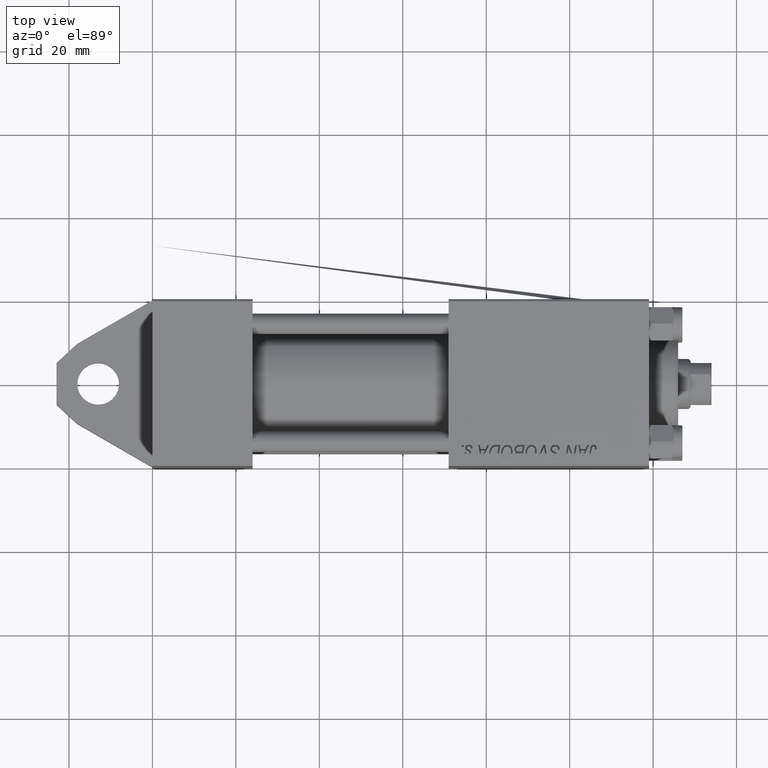
[diagram: clean part render]
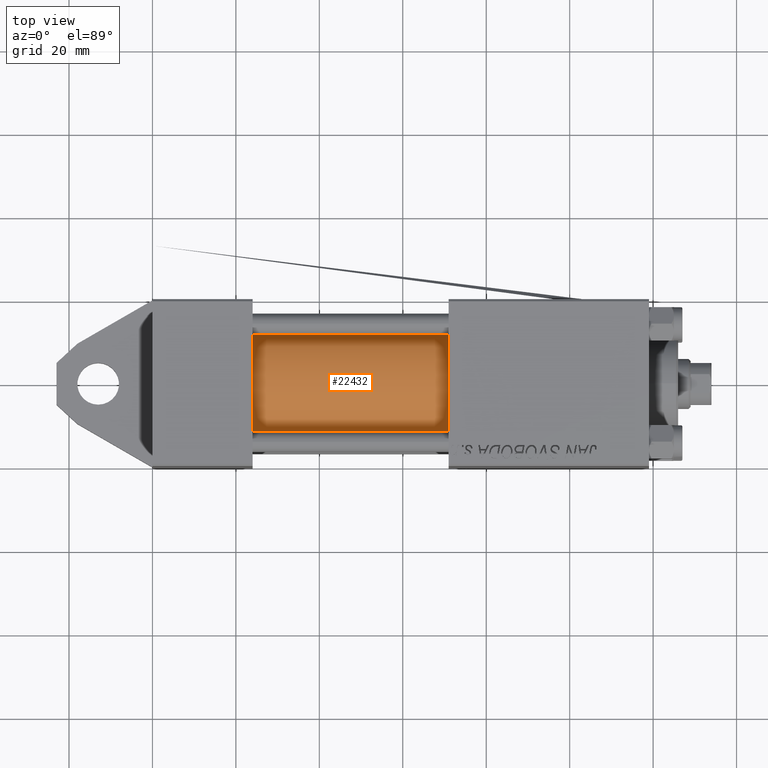
[diagram: same view with one face highlighted and labeled with its STEP entity id]
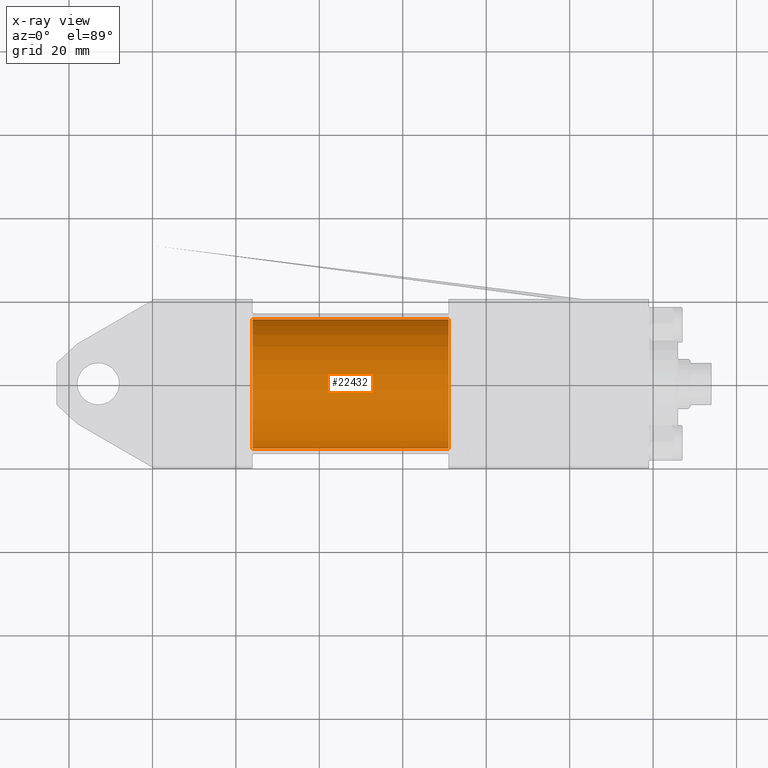
[diagram: x-ray of the same camera — body ghosted, the highlighted face saturated]
A machine part, top view. The second image highlights one B-rep face of the part: STEP entity #22432.
The next image is the same camera in x-ray: the body ghosted, the highlighted face saturated — about 0% of this face is hidden behind the body in this view.
In plain terms, the highlighted cylindrical surface (partial cylindrical patch) has radius 15.5 mm, axis along (-1, -0, 0).
Its self-contained STEP definition (entity closure, byte-faithful):
#3301 = DIRECTION ( 'NONE',  ( -1.000000000000000000, -0.000000000000000000, -0.000000000000000000 ) ) ;
#4456 = ORIENTED_EDGE ( 'NONE', *, *, #39508, .T. ) ;
#5146 = ORIENTED_EDGE ( 'NONE', *, *, #20796, .F. ) ;
#6498 = VERTEX_POINT ( 'NONE', #40514 ) ;
#6535 = EDGE_LOOP ( 'NONE', ( #5146, #4456, #26549, #18610 ) ) ;
#6741 = DIRECTION ( 'NONE',  ( -1.000000000000000000, -0.000000000000000000, -0.000000000000000000 ) ) ;
#7553 = CARTESIAN_POINT ( 'NONE',  ( 24.00000000000000000, -2.602085213965210642E-15, 0.000000000000000000 ) ) ;
#8753 = CARTESIAN_POINT ( 'NONE',  ( 24.00000000000000000, -2.602085213965210642E-15, 15.50000000000000000 ) ) ;
#9785 = VERTEX_POINT ( 'NONE', #24573 ) ;
#13311 = CYLINDRICAL_SURFACE ( 'NONE', #36284, 15.50000000000000000 ) ;
#13869 = CARTESIAN_POINT ( 'NONE',  ( 71.00000000000001421, -2.602085213965210642E-15, 15.50000000000000000 ) ) ;
#14304 = VECTOR ( 'NONE', #6741, 1000.000000000000000 ) ;
#15878 = VERTEX_POINT ( 'NONE', #25983 ) ;
#17659 = AXIS2_PLACEMENT_3D ( 'NONE', #25311, #22283, #36493 ) ;
#18610 = ORIENTED_EDGE ( 'NONE', *, *, #19587, .F. ) ;
#19111 = CIRCLE ( 'NONE', #17659, 15.50000000000000000 ) ;
#19587 = EDGE_CURVE ( 'NONE', #6498, #25622, #32028, .T. ) ;
#20796 = EDGE_CURVE ( 'NONE', #15878, #6498, #19111, .T. ) ;
#21645 = AXIS2_PLACEMENT_3D ( 'NONE', #7553, #35950, #36412 ) ;
#22283 = DIRECTION ( 'NONE',  ( 1.000000000000000000, 0.000000000000000000, 0.000000000000000000 ) ) ;
#22432 = ADVANCED_FACE ( 'NONE', ( #35181 ), #13311, .T. ) ;
#24573 = CARTESIAN_POINT ( 'NONE',  ( 24.00000000000000000, -7.038826752868131828E-16, -15.50000000000000000 ) ) ;
#25262 = DIRECTION ( 'NONE',  ( -1.000000000000000000, -0.000000000000000000, -0.000000000000000000 ) ) ;
#25311 = CARTESIAN_POINT ( 'NONE',  ( 71.00000000000001421, -2.602085213965210642E-15, 0.000000000000000000 ) ) ;
#25327 = CARTESIAN_POINT ( 'NONE',  ( 71.00000000000001421, -7.038826752868131828E-16, -15.50000000000000000 ) ) ;
#25622 = VERTEX_POINT ( 'NONE', #8753 ) ;
#25983 = CARTESIAN_POINT ( 'NONE',  ( 71.00000000000001421, -7.038826752868131828E-16, -15.50000000000000000 ) ) ;
#26134 = CIRCLE ( 'NONE', #21645, 15.50000000000000000 ) ;
#26549 = ORIENTED_EDGE ( 'NONE', *, *, #33947, .T. ) ;
#28368 = LINE ( 'NONE', #25327, #14304 ) ;
#31236 = DIRECTION ( 'NONE',  ( 0.000000000000000000, 0.000000000000000000, 1.000000000000000000 ) ) ;
#32028 = LINE ( 'NONE', #13869, #38427 ) ;
#33947 = EDGE_CURVE ( 'NONE', #9785, #25622, #26134, .T. ) ;
#35181 = FACE_OUTER_BOUND ( 'NONE', #6535, .T. ) ;
#35950 = DIRECTION ( 'NONE',  ( 1.000000000000000000, 0.000000000000000000, 0.000000000000000000 ) ) ;
#36284 = AXIS2_PLACEMENT_3D ( 'NONE', #41701, #3301, #31236 ) ;
#36412 = DIRECTION ( 'NONE',  ( 0.000000000000000000, 0.000000000000000000, 1.000000000000000000 ) ) ;
#36493 = DIRECTION ( 'NONE',  ( 0.000000000000000000, 0.000000000000000000, -1.000000000000000000 ) ) ;
#38427 = VECTOR ( 'NONE', #25262, 1000.000000000000000 ) ;
#39508 = EDGE_CURVE ( 'NONE', #15878, #9785, #28368, .T. ) ;
#40514 = CARTESIAN_POINT ( 'NONE',  ( 71.00000000000001421, -2.602085213965210642E-15, 15.50000000000000000 ) ) ;
#41701 = CARTESIAN_POINT ( 'NONE',  ( 71.00000000000001421, -2.602085213965210642E-15, 0.000000000000000000 ) ) ;